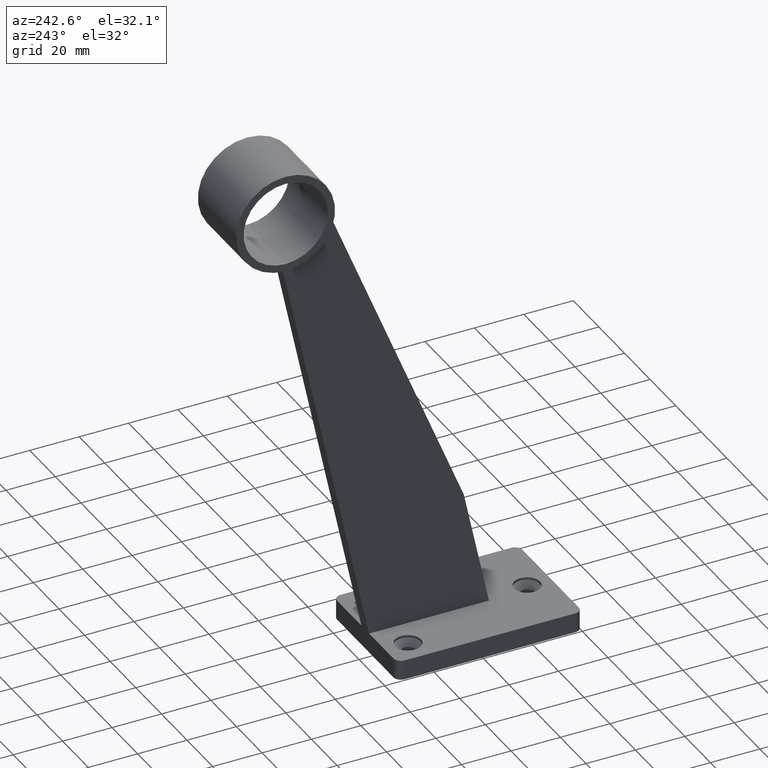
[diagram: clean part render]
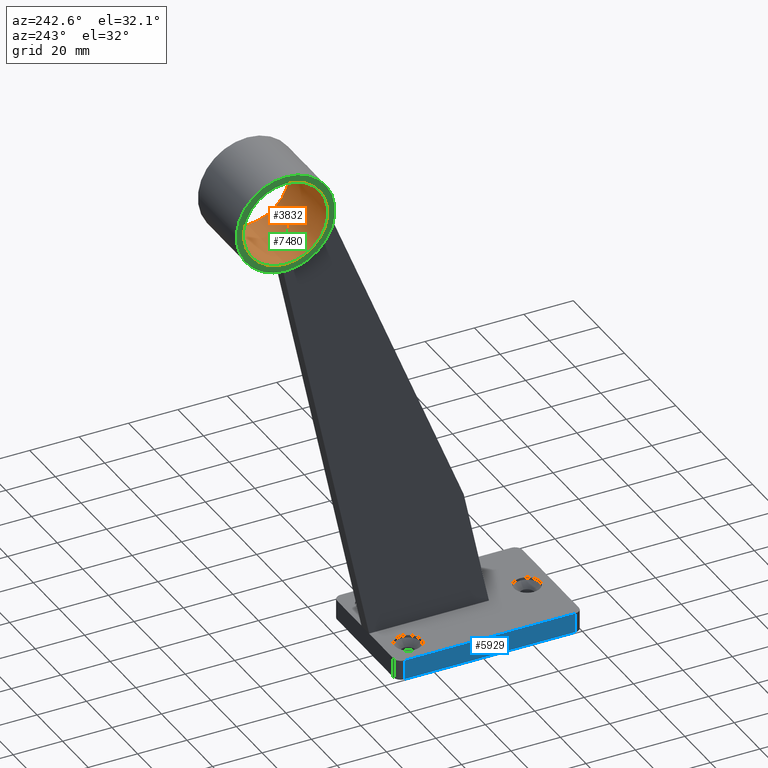
[diagram: same view with three faces highlighted in distinct colors, each labeled with its STEP entity id]
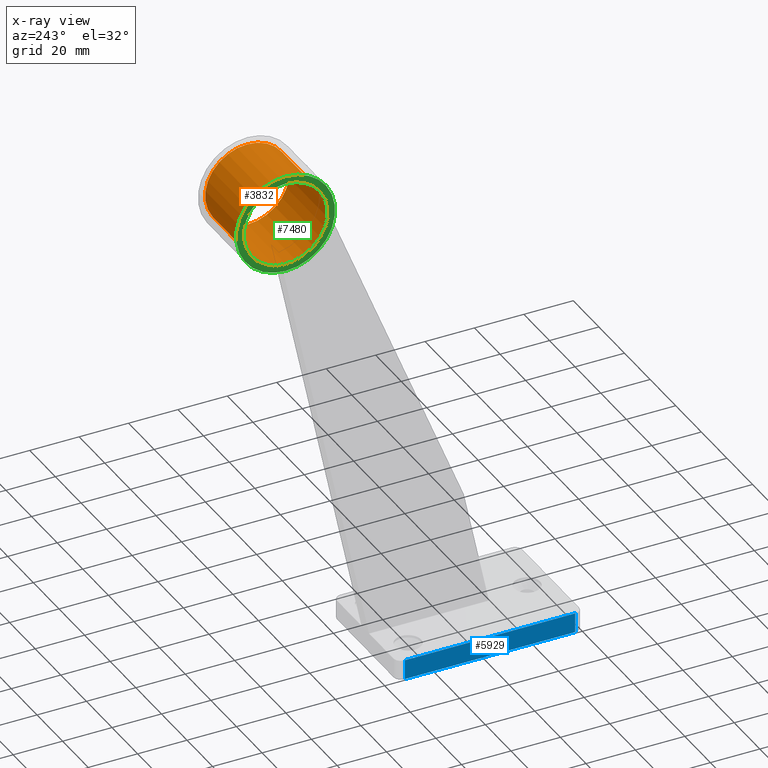
[diagram: x-ray of the same camera — body ghosted, the three highlighted faces saturated]
A machine part, auxiliary view with three faces highlighted in distinct colors.
The next image is the same camera in x-ray (body ghosted, the three faces saturated) — at least one of them is partly hidden behind the body in this view.
Their STEP definitions:

[orange] entity #3832 — the highlighted cylindrical surface (bore or boss wall) has radius 17.05 mm, axis along (1, 0, 0).
#156 = DIRECTION ( 'NONE',  ( 0.000000000000000000, 0.000000000000000000, -1.000000000000000000 ) ) ;
#184 = CIRCLE ( 'NONE', #4315, 17.05000000000001137 ) ;
#191 = EDGE_LOOP ( 'NONE', ( #3737 ) ) ;
#197 = EDGE_CURVE ( 'NONE', #2160, #2160, #184, .T. ) ;
#247 = CYLINDRICAL_SURFACE ( 'NONE', #10353, 17.05000000000001137 ) ;
#287 = EDGE_LOOP ( 'NONE', ( #7527 ) ) ;
#716 = CARTESIAN_POINT ( 'NONE',  ( 0.2754073561838189521, 61.80203446428406266, 206.6541041513863775 ) ) ;
#755 = CARTESIAN_POINT ( 'NONE',  ( 0.9315964320358609552, 63.76845159168374977, 210.1069230536806458 ) ) ;
#795 = CARTESIAN_POINT ( 'NONE',  ( -2.033427959441856281, 62.47020318818213269, 208.0514445427972703 ) ) ;
#839 = CARTESIAN_POINT ( 'NONE',  ( 2.044558870806237216, 62.46443595434068641, 208.0435239343098885 ) ) ;
#882 = CARTESIAN_POINT ( 'NONE',  ( -0.5499819029725120378, 63.86312778307586058, 210.2347104106658549 ) ) ;
#1062 = DIRECTION ( 'NONE',  ( 0.000000000000000000, 0.000000000000000000, -1.000000000000000000 ) ) ;
#1301 = AXIS2_PLACEMENT_3D ( 'NONE', #7726, #10377, #156 ) ;
#1319 = B_SPLINE_CURVE_WITH_KNOTS ( 'NONE', 3,
 ( #4621, #7399, #716, #9321, #6506, #2755, #6417, #10157, #1810, #6375, #5590, #839, #6462, #11088, #7317, #9235, #8315, #7477, #8404, #3565, #11256, #12206, #7440, #6549, #755, #1851, #9362, #2669, #1682, #10196, #882, #11127, #8442, #4458, #11212, #10271, #3521, #8275, #5548, #5505, #5424, #12035, #8362, #795, #4499, #12073, #12122, #7359, #11174, #9279, #1725, #3603, #10236, #4539 ),
 .UNSPECIFIED., .T., .F.,
 ( 4, 2, 2, 2, 2, 2, 2, 2, 2, 2, 2, 2, 2, 2, 2, 2, 2, 2, 2, 2, 2, 2, 2, 2, 2, 2, 4 ),
 ( 0.000000000000000000, 0.0004106878495126972412, 0.0008213756990253944824, 0.001232063548538091724, 0.001642751398050788965, 0.002464127097076183447, 0.003285502796101577062, 0.003696190645614320491, 0.004106878495127063919, 0.004517566344639806913, 0.004928254194152549908, 0.005338942043665293770, 0.005749629893178036764, 0.006160317742690780626, 0.006571005592203523621, 0.007392381291229009610, 0.008213756990254497334, 0.008624444839767238594, 0.009035132689279981588, 0.009445820538792724583, 0.009856508388305465843, 0.01026719623781820884, 0.01067788408733094316, 0.01108857193684367748, 0.01149925978635641007, 0.01232063548538188218, 0.01314201118440735429 ),
 .UNSPECIFIED. ) ;
#1338 = CARTESIAN_POINT ( 'NONE',  ( 0.000000000000000000, 61.79669405901866241, 206.6414367815963544 ) ) ;
#1457 = EDGE_LOOP ( 'NONE', ( #10523 ) ) ;
#1682 = CARTESIAN_POINT ( 'NONE',  ( 0.1378957369344644690, 63.89666274867703066, 210.2787020401143820 ) ) ;
#1725 = CARTESIAN_POINT ( 'NONE',  ( -1.058767906771644007, 61.90262510641427696, 206.8873482419038226 ) ) ;
#1810 = CARTESIAN_POINT ( 'NONE',  ( 1.388327112998999802, 62.00691652089219730, 207.1187288871888370 ) ) ;
#1851 = CARTESIAN_POINT ( 'NONE',  ( 0.6773830959289319775, 63.83162223153997417, 210.1921913483619448 ) ) ;
#2089 = CARTESIAN_POINT ( 'NONE',  ( -15.00000000000000000, 77.50000000000001421, 182.9499999999999886 ) ) ;
#2111 = CARTESIAN_POINT ( 'NONE',  ( 15.00000000000000000, 77.50000000000001421, 200.0000000000000000 ) ) ;
#2160 = VERTEX_POINT ( 'NONE', #10708 ) ;
#2669 = CARTESIAN_POINT ( 'NONE',  ( 0.2771694194575540782, 63.88826862449034394, 210.2676192467224610 ) ) ;
#2755 = CARTESIAN_POINT ( 'NONE',  ( 0.9316566361404509111, 61.88138507796389121, 206.8384343465373547 ) ) ;
#3036 = VERTEX_POINT ( 'NONE', #1338 ) ;
#3521 = CARTESIAN_POINT ( 'NONE',  ( -1.886224014992207154, 63.22265991278033681, 209.3207429903248453 ) ) ;
#3565 = CARTESIAN_POINT ( 'NONE',  ( 1.670250433989058481, 63.41572883146002937, 209.6098280727485701 ) ) ;
#3603 = CARTESIAN_POINT ( 'NONE',  ( -0.5537003185735350774, 61.81844376712972178, 206.6934642369732558 ) ) ;
#3737 = ORIENTED_EDGE ( 'NONE', *, *, #197, .T. ) ;
#3832 = ADVANCED_FACE ( 'NONE', ( #6763, #10759, #4097 ), #247, .F. ) ;
#4097 = FACE_OUTER_BOUND ( 'NONE', #191, .T. ) ;
#4197 = VERTEX_POINT ( 'NONE', #2089 ) ;
#4315 = AXIS2_PLACEMENT_3D ( 'NONE', #2111, #9584, #8709 ) ;
#4458 = CARTESIAN_POINT ( 'NONE',  ( -1.580388972538876446, 63.47797382477483552, 209.7002425013279492 ) ) ;
#4499 = CARTESIAN_POINT ( 'NONE',  ( -1.993101654049558524, 62.40763469784259598, 207.9334239767730139 ) ) ;
#4539 = CARTESIAN_POINT ( 'NONE',  ( -2.303929616531696922E-16, 61.79669405901864820, 206.6414367815963544 ) ) ;
#4621 = CARTESIAN_POINT ( 'NONE',  ( -2.303929616531696922E-16, 61.79669405901864820, 206.6414367815963544 ) ) ;
#4966 = CARTESIAN_POINT ( 'NONE',  ( -15.00000000000000000, 77.50000000000001421, 200.0000000000000000 ) ) ;
#5424 = CARTESIAN_POINT ( 'NONE',  ( -2.099872925562062509, 62.80467054013009687, 208.6469114387601849 ) ) ;
#5505 = CARTESIAN_POINT ( 'NONE',  ( -2.086107152721114577, 62.87441255648779048, 208.7642867251495034 ) ) ;
#5548 = CARTESIAN_POINT ( 'NONE',  ( -2.032454209725092831, 63.01426238759294307, 208.9935496714562078 ) ) ;
#5590 = CARTESIAN_POINT ( 'NONE',  ( 1.835006498775114014, 62.23247747379598849, 207.5940252412533198 ) ) ;
#5834 = CIRCLE ( 'NONE', #1301, 17.05000000000001137 ) ;
#6375 = CARTESIAN_POINT ( 'NONE',  ( 1.678586422504603659, 62.13009830693170699, 207.3828428525204970 ) ) ;
#6417 = CARTESIAN_POINT ( 'NONE',  ( 1.052221630095912630, 61.90744829233131696, 206.8978763594410850 ) ) ;
#6462 = CARTESIAN_POINT ( 'NONE',  ( 2.099847627790271787, 62.59660392579173305, 208.2865232596512612 ) ) ;
#6506 = CARTESIAN_POINT ( 'NONE',  ( 0.6774101388250681754, 61.83911759114794648, 206.7410739923886638 ) ) ;
#6549 = CARTESIAN_POINT ( 'NONE',  ( 1.054397017792810365, 63.72922215492590681, 210.0535576986247008 ) ) ;
#6763 = FACE_BOUND ( 'NONE', #1457, .T. ) ;
#7317 = CARTESIAN_POINT ( 'NONE',  ( 2.086414961971043702, 62.87333312336718194, 208.7624924728014548 ) ) ;
#7359 = CARTESIAN_POINT ( 'NONE',  ( -1.671270093269316748, 62.13606352938484179, 207.3935818578537749 ) ) ;
#7399 = CARTESIAN_POINT ( 'NONE',  ( 0.1388773527919768547, 61.79669405901865531, 206.6414367815963260 ) ) ;
#7440 = CARTESIAN_POINT ( 'NONE',  ( 1.281656327274763196, 63.63961802512923782, 209.9296604357165563 ) ) ;
#7477 = CARTESIAN_POINT ( 'NONE',  ( 1.887864283483719152, 63.22084185272335333, 209.3179589729244299 ) ) ;
#7527 = ORIENTED_EDGE ( 'NONE', *, *, #12213, .F. ) ;
#7726 = CARTESIAN_POINT ( 'NONE',  ( -15.00000000000000000, 77.50000000000001421, 200.0000000000000000 ) ) ;
#8275 = CARTESIAN_POINT ( 'NONE',  ( -1.991913755071999859, 63.08514165802819917, 209.1066211537926449 ) ) ;
#8315 = CARTESIAN_POINT ( 'NONE',  ( 1.993116203501388517, 63.08325227770151855, 209.1036312495423317 ) ) ;
#8362 = CARTESIAN_POINT ( 'NONE',  ( -2.086609991319544388, 62.59895405820782344, 208.2873024121767003 ) ) ;
#8404 = CARTESIAN_POINT ( 'NONE',  ( 1.822168036650795298, 63.28851640601039463, 209.4206806545236361 ) ) ;
#8442 = CARTESIAN_POINT ( 'NONE',  ( -1.289731146461361222, 63.64501029263834653, 209.9387851763671335 ) ) ;
#8709 = DIRECTION ( 'NONE',  ( 0.000000000000000000, 0.000000000000000000, -1.000000000000000000 ) ) ;
#9235 = CARTESIAN_POINT ( 'NONE',  ( 2.032791056850976386, 63.01365817761919885, 208.9925835476259692 ) ) ;
#9279 = CARTESIAN_POINT ( 'NONE',  ( -1.292716524969749425, 61.96622062276094312, 207.0314998491297160 ) ) ;
#9321 = CARTESIAN_POINT ( 'NONE',  ( 0.5439728905420021521, 61.82311505276343411, 206.7036186026004430 ) ) ;
#9362 = CARTESIAN_POINT ( 'NONE',  ( 0.5464920143144312847, 63.85566196381751780, 210.2242493900081683 ) ) ;
#9584 = DIRECTION ( 'NONE',  ( 1.000000000000000000, 0.000000000000000000, 0.000000000000000000 ) ) ;
#10157 = CARTESIAN_POINT ( 'NONE',  ( 1.280395426006487369, 61.97005334129116250, 207.0376930740204955 ) ) ;
#10196 = CARTESIAN_POINT ( 'NONE',  ( -0.2734299965616788231, 63.89675641083832147, 210.2788259964191013 ) ) ;
#10236 = CARTESIAN_POINT ( 'NONE',  ( -0.2777547055839799661, 61.79669405901864110, 206.6414367815964681 ) ) ;
#10271 = CARTESIAN_POINT ( 'NONE',  ( -1.821613590671618432, 63.28907309029533934, 209.4215235441106131 ) ) ;
#10353 = AXIS2_PLACEMENT_3D ( 'NONE', #4966, #10648, #1062 ) ;
#10377 = DIRECTION ( 'NONE',  ( 1.000000000000000000, 0.000000000000000000, 0.000000000000000000 ) ) ;
#10523 = ORIENTED_EDGE ( 'NONE', *, *, #11681, .T. ) ;
#10648 = DIRECTION ( 'NONE',  ( 1.000000000000000000, -0.000000000000000000, -0.000000000000000000 ) ) ;
#10708 = CARTESIAN_POINT ( 'NONE',  ( 15.00000000000000000, 77.50000000000001421, 182.9499999999999886 ) ) ;
#10759 = FACE_OUTER_BOUND ( 'NONE', #287, .T. ) ;
#11088 = CARTESIAN_POINT ( 'NONE',  ( 2.100075701783070237, 62.80222499889809029, 208.6427255878195979 ) ) ;
#11127 = CARTESIAN_POINT ( 'NONE',  ( -1.055580538683207781, 63.73779413719199738, 210.0655487103586552 ) ) ;
#11174 = CARTESIAN_POINT ( 'NONE',  ( -1.582760496772268821, 62.08949174342970423, 207.2957647468541609 ) ) ;
#11212 = CARTESIAN_POINT ( 'NONE',  ( -1.669109131422926717, 63.41659109557898688, 209.6110947948750720 ) ) ;
#11256 = CARTESIAN_POINT ( 'NONE',  ( 1.583425263374650171, 63.47608591101742803, 209.6975260248782718 ) ) ;
#11681 = EDGE_CURVE ( 'NONE', #3036, #3036, #1319, .T. ) ;
#12035 = CARTESIAN_POINT ( 'NONE',  ( -2.100125339996735452, 62.66577186363753071, 208.4063940522815983 ) ) ;
#12073 = CARTESIAN_POINT ( 'NONE',  ( -1.887884575026220979, 62.29085362975297357, 207.7071767267530049 ) ) ;
#12122 = CARTESIAN_POINT ( 'NONE',  ( -1.823480799036108824, 62.23669530297445363, 207.5991529980413475 ) ) ;
#12206 = CARTESIAN_POINT ( 'NONE',  ( 1.387577231874868700, 63.58891980918840403, 209.8587030233781547 ) ) ;
#12213 = EDGE_CURVE ( 'NONE', #4197, #4197, #5834, .T. ) ;

[blue] entity #5929 — the highlighted planar face has unit normal (1, 0, 0).
#595 = ORIENTED_EDGE ( 'NONE', *, *, #1215, .T. ) ;
#1105 = CARTESIAN_POINT ( 'NONE',  ( -25.00000000000000355, 34.49999999999999289, 0.000000000000000000 ) ) ;
#1215 = EDGE_CURVE ( 'NONE', #4831, #4769, #11409, .T. ) ;
#1320 = LINE ( 'NONE', #9520, #11065 ) ;
#1529 = CARTESIAN_POINT ( 'NONE',  ( -25.00000000000000355, 37.50000000000000000, 8.000000000000000000 ) ) ;
#2513 = CARTESIAN_POINT ( 'NONE',  ( -24.99999999999999645, -34.49999999999999289, 0.000000000000000000 ) ) ;
#2659 = VERTEX_POINT ( 'NONE', #8069 ) ;
#2878 = EDGE_CURVE ( 'NONE', #4769, #2659, #1320, .T. ) ;
#4769 = VERTEX_POINT ( 'NONE', #2513 ) ;
#4831 = VERTEX_POINT ( 'NONE', #1105 ) ;
#5207 = ORIENTED_EDGE ( 'NONE', *, *, #8714, .T. ) ;
#5729 = EDGE_CURVE ( 'NONE', #9585, #2659, #11366, .T. ) ;
#5861 = CARTESIAN_POINT ( 'NONE',  ( -25.00000000000000355, 37.50000000000000000, 0.000000000000000000 ) ) ;
#5929 = ADVANCED_FACE ( 'NONE', ( #12110 ), #8163, .F. ) ;
#6066 = DIRECTION ( 'NONE',  ( 9.251858538542971581E-17, -1.000000000000000000, 0.000000000000000000 ) ) ;
#6756 = DIRECTION ( 'NONE',  ( 0.000000000000000000, 0.000000000000000000, -1.000000000000000000 ) ) ;
#7648 = DIRECTION ( 'NONE',  ( 0.000000000000000000, -0.000000000000000000, 1.000000000000000000 ) ) ;
#7788 = CARTESIAN_POINT ( 'NONE',  ( -25.00000000000000355, 34.49999999999999289, 8.000000000000000000 ) ) ;
#8069 = CARTESIAN_POINT ( 'NONE',  ( -24.99999999999999645, -34.49999999999999289, 8.000000000000000000 ) ) ;
#8163 = PLANE ( 'NONE',  #9249 ) ;
#8482 = ORIENTED_EDGE ( 'NONE', *, *, #5729, .F. ) ;
#8714 = EDGE_CURVE ( 'NONE', #9585, #4831, #9728, .T. ) ;
#8835 = CARTESIAN_POINT ( 'NONE',  ( -25.00000000000000355, 37.50000000000000000, 8.000000000000000000 ) ) ;
#8878 = EDGE_LOOP ( 'NONE', ( #8482, #5207, #595, #11388 ) ) ;
#9126 = DIRECTION ( 'NONE',  ( 1.000000000000000000, 9.251858538542971581E-17, -0.000000000000000000 ) ) ;
#9249 = AXIS2_PLACEMENT_3D ( 'NONE', #1529, #9126, #10077 ) ;
#9520 = CARTESIAN_POINT ( 'NONE',  ( -24.99999999999999645, -34.49999999999999289, 8.000000000000000000 ) ) ;
#9553 = CARTESIAN_POINT ( 'NONE',  ( -25.00000000000000355, 34.49999999999999289, 8.000000000000000000 ) ) ;
#9585 = VERTEX_POINT ( 'NONE', #9553 ) ;
#9728 = LINE ( 'NONE', #7788, #11785 ) ;
#10077 = DIRECTION ( 'NONE',  ( -9.251858538542971581E-17, 1.000000000000000000, 0.000000000000000000 ) ) ;
#10500 = DIRECTION ( 'NONE',  ( 9.251858538542971581E-17, -1.000000000000000000, 0.000000000000000000 ) ) ;
#10530 = VECTOR ( 'NONE', #10500, 1000.000000000000000 ) ;
#11065 = VECTOR ( 'NONE', #7648, 1000.000000000000000 ) ;
#11353 = VECTOR ( 'NONE', #6066, 1000.000000000000000 ) ;
#11366 = LINE ( 'NONE', #8835, #11353 ) ;
#11388 = ORIENTED_EDGE ( 'NONE', *, *, #2878, .T. ) ;
#11409 = LINE ( 'NONE', #5861, #10530 ) ;
#11785 = VECTOR ( 'NONE', #6756, 1000.000000000000000 ) ;
#12110 = FACE_OUTER_BOUND ( 'NONE', #8878, .T. ) ;

[green] entity #7480 — the highlighted planar face has unit normal (1, 0, 0).
#156 = DIRECTION ( 'NONE',  ( 0.000000000000000000, 0.000000000000000000, -1.000000000000000000 ) ) ;
#756 = CIRCLE ( 'NONE', #1583, 19.99999999999998934 ) ;
#785 = ORIENTED_EDGE ( 'NONE', *, *, #12213, .T. ) ;
#1168 = EDGE_CURVE ( 'NONE', #12045, #12045, #756, .T. ) ;
#1301 = AXIS2_PLACEMENT_3D ( 'NONE', #7726, #10377, #156 ) ;
#1583 = AXIS2_PLACEMENT_3D ( 'NONE', #11361, #4693, #12271 ) ;
#1655 = EDGE_LOOP ( 'NONE', ( #10099 ) ) ;
#2089 = CARTESIAN_POINT ( 'NONE',  ( -15.00000000000000000, 77.50000000000001421, 182.9499999999999886 ) ) ;
#3397 = PLANE ( 'NONE',  #4256 ) ;
#4197 = VERTEX_POINT ( 'NONE', #2089 ) ;
#4256 = AXIS2_PLACEMENT_3D ( 'NONE', #6414, #11051, #7311 ) ;
#4693 = DIRECTION ( 'NONE',  ( 1.000000000000000000, 0.000000000000000000, 0.000000000000000000 ) ) ;
#4989 = CARTESIAN_POINT ( 'NONE',  ( -15.00000000000000000, 77.50000000000001421, 180.0000000000000284 ) ) ;
#5434 = FACE_OUTER_BOUND ( 'NONE', #1655, .T. ) ;
#5834 = CIRCLE ( 'NONE', #1301, 17.05000000000001137 ) ;
#6414 = CARTESIAN_POINT ( 'NONE',  ( -15.00000000000000000, 77.50000000000001421, 200.0000000000000000 ) ) ;
#6858 = EDGE_LOOP ( 'NONE', ( #785 ) ) ;
#7311 = DIRECTION ( 'NONE',  ( 0.000000000000000000, 0.000000000000000000, -1.000000000000000000 ) ) ;
#7480 = ADVANCED_FACE ( 'NONE', ( #12250, #5434 ), #3397, .F. ) ;
#7726 = CARTESIAN_POINT ( 'NONE',  ( -15.00000000000000000, 77.50000000000001421, 200.0000000000000000 ) ) ;
#10099 = ORIENTED_EDGE ( 'NONE', *, *, #1168, .F. ) ;
#10377 = DIRECTION ( 'NONE',  ( 1.000000000000000000, 0.000000000000000000, 0.000000000000000000 ) ) ;
#11051 = DIRECTION ( 'NONE',  ( 1.000000000000000000, 0.000000000000000000, 0.000000000000000000 ) ) ;
#11361 = CARTESIAN_POINT ( 'NONE',  ( -15.00000000000000000, 77.50000000000001421, 200.0000000000000000 ) ) ;
#12045 = VERTEX_POINT ( 'NONE', #4989 ) ;
#12213 = EDGE_CURVE ( 'NONE', #4197, #4197, #5834, .T. ) ;
#12250 = FACE_BOUND ( 'NONE', #6858, .T. ) ;
#12271 = DIRECTION ( 'NONE',  ( 0.000000000000000000, 0.000000000000000000, -1.000000000000000000 ) ) ;